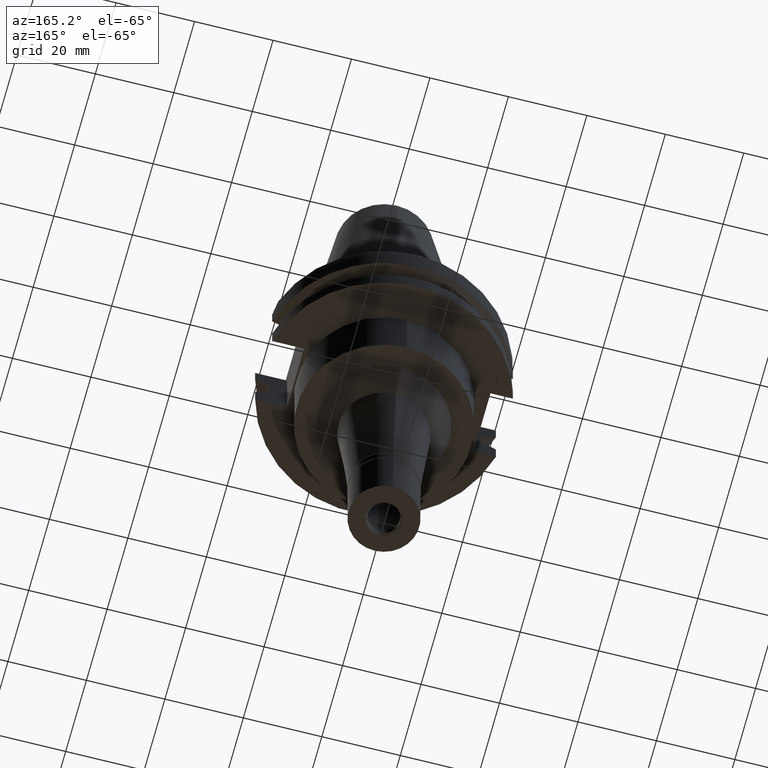
[diagram: clean part render]
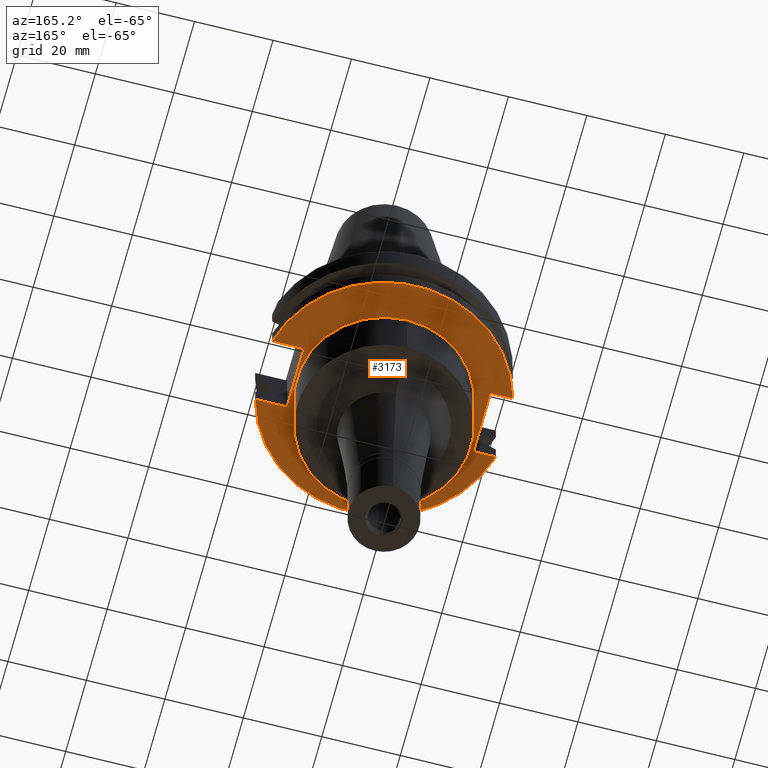
[diagram: same view with one face highlighted and labeled with its STEP entity id]
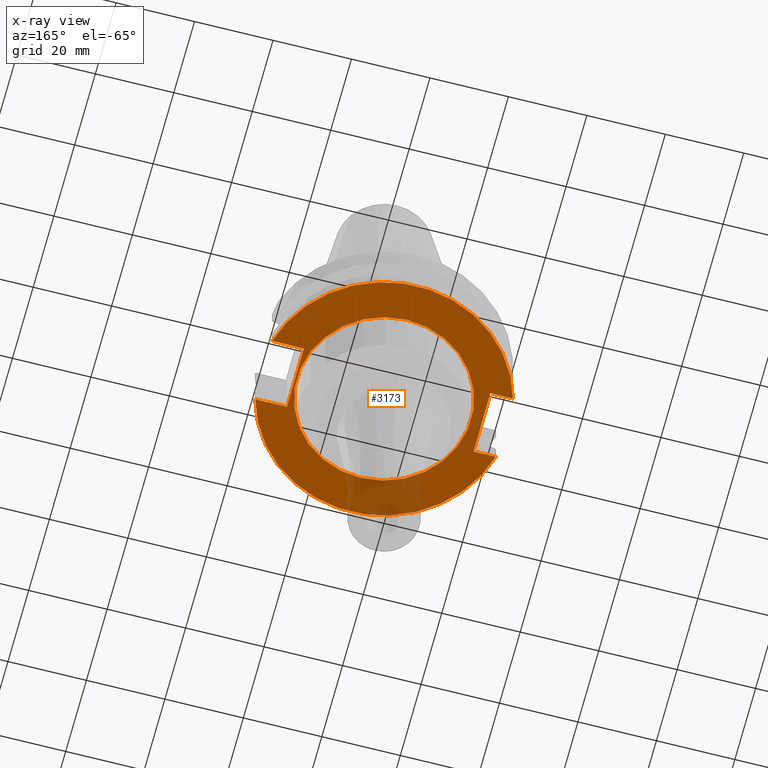
[diagram: x-ray of the same camera — body ghosted, the highlighted face saturated]
A machine part, auxiliary view. The second image highlights one B-rep face of the part: STEP entity #3173.
The next image is the same camera in x-ray: the body ghosted, the highlighted face saturated — about 13% of this face is hidden behind the body in this view.
In plain terms, the highlighted planar face has unit normal (0, 0, -1).
Its self-contained STEP definition (entity closure, byte-faithful):
#28 = LINE ( 'NONE', #1022, #1645 ) ;
#90 = CARTESIAN_POINT ( 'NONE',  ( -24.98000000000000043, 8.189999999999999503, -19.05000000000000071 ) ) ;
#120 = EDGE_CURVE ( 'NONE', #581, #715, #2353, .T. ) ;
#129 = CARTESIAN_POINT ( 'NONE',  ( 22.57000000000000028, 8.189999999999999503, -19.05000000000000071 ) ) ;
#132 = CARTESIAN_POINT ( 'NONE',  ( 22.57000000000000028, 8.189999999999999503, -19.05000000000000071 ) ) ;
#147 = LINE ( 'NONE', #2355, #2578 ) ;
#171 = VERTEX_POINT ( 'NONE', #456 ) ;
#243 = DIRECTION ( 'NONE',  ( 0.0000000000000000000, 0.0000000000000000000, -1.000000000000000000 ) ) ;
#248 = DIRECTION ( 'NONE',  ( 0.0000000000000000000, 1.000000000000000000, 0.0000000000000000000 ) ) ;
#353 = DIRECTION ( 'NONE',  ( 0.0000000000000000000, -1.000000000000000000, 0.0000000000000000000 ) ) ;
#367 = DIRECTION ( 'NONE',  ( 0.0000000000000000000, 0.0000000000000000000, 1.000000000000000000 ) ) ;
#379 = DIRECTION ( 'NONE',  ( 1.000000000000000000, 0.0000000000000000000, 0.0000000000000000000 ) ) ;
#423 = FACE_BOUND ( 'NONE', #1531, .T. ) ;
#456 = CARTESIAN_POINT ( 'NONE',  ( -30.67550162588999640, -8.189999999999999503, -19.05000000000000071 ) ) ;
#488 = DIRECTION ( 'NONE',  ( 1.000000000000000000, 0.0000000000000000000, 0.0000000000000000000 ) ) ;
#490 = ORIENTED_EDGE ( 'NONE', *, *, #2225, .T. ) ;
#531 = DIRECTION ( 'NONE',  ( -1.000000000000000000, 0.0000000000000000000, 0.0000000000000000000 ) ) ;
#534 = ORIENTED_EDGE ( 'NONE', *, *, #607, .F. ) ;
#581 = VERTEX_POINT ( 'NONE', #815 ) ;
#607 = EDGE_CURVE ( 'NONE', #581, #1787, #2093, .T. ) ;
#673 = CIRCLE ( 'NONE', #3190, 31.75000000000000000 ) ;
#699 = VECTOR ( 'NONE', #488, 1000.000000000000000 ) ;
#710 = EDGE_CURVE ( 'NONE', #3017, #760, #28, .T. ) ;
#715 = VERTEX_POINT ( 'NONE', #2985 ) ;
#760 = VERTEX_POINT ( 'NONE', #2166 ) ;
#801 = ORIENTED_EDGE ( 'NONE', *, *, #1981, .F. ) ;
#815 = CARTESIAN_POINT ( 'NONE',  ( 22.57000000000000028, 8.189999999999999503, -19.05000000000000071 ) ) ;
#846 = AXIS2_PLACEMENT_3D ( 'NONE', #2705, #1215, #248 ) ;
#872 = AXIS2_PLACEMENT_3D ( 'NONE', #1641, #1367, #1098 ) ;
#896 = CARTESIAN_POINT ( 'NONE',  ( 0.0000000000000000000, 22.22500000000000142, -19.05000000000000071 ) ) ;
#924 = CARTESIAN_POINT ( 'NONE',  ( 30.67550162588999640, -8.189999999999999503, -19.05000000000000071 ) ) ;
#951 = CIRCLE ( 'NONE', #846, 22.22500000000000142 ) ;
#976 = EDGE_CURVE ( 'NONE', #3017, #1510, #147, .T. ) ;
#1022 = CARTESIAN_POINT ( 'NONE',  ( -24.98000000000000043, 8.189999999999999503, -19.05000000000000071 ) ) ;
#1047 = VECTOR ( 'NONE', #531, 1000.000000000000000 ) ;
#1062 = EDGE_CURVE ( 'NONE', #1787, #1510, #673, .T. ) ;
#1098 = DIRECTION ( 'NONE',  ( 0.0000000000000000000, -1.000000000000000000, 0.0000000000000000000 ) ) ;
#1215 = DIRECTION ( 'NONE',  ( 0.0000000000000000000, 0.0000000000000000000, -1.000000000000000000 ) ) ;
#1266 = ORIENTED_EDGE ( 'NONE', *, *, #976, .T. ) ;
#1267 = ORIENTED_EDGE ( 'NONE', *, *, #120, .T. ) ;
#1364 = DIRECTION ( 'NONE',  ( 0.0000000000000000000, 0.0000000000000000000, 1.000000000000000000 ) ) ;
#1367 = DIRECTION ( 'NONE',  ( 0.0000000000000000000, 0.0000000000000000000, -1.000000000000000000 ) ) ;
#1373 = ORIENTED_EDGE ( 'NONE', *, *, #1519, .F. ) ;
#1384 = VECTOR ( 'NONE', #379, 1000.000000000000000 ) ;
#1405 = CARTESIAN_POINT ( 'NONE',  ( 0.0000000000000000000, 0.0000000000000000000, -19.05000000000000071 ) ) ;
#1510 = VERTEX_POINT ( 'NONE', #2747 ) ;
#1519 = EDGE_CURVE ( 'NONE', #2934, #1530, #2892, .T. ) ;
#1530 = VERTEX_POINT ( 'NONE', #896 ) ;
#1531 = EDGE_LOOP ( 'NONE', ( #2317, #1373 ) ) ;
#1547 = CARTESIAN_POINT ( 'NONE',  ( 0.0000000000000000000, -22.22500000000000142, -19.05000000000000071 ) ) ;
#1587 = DIRECTION ( 'NONE',  ( 0.0000000000000000000, 1.000000000000000000, 0.0000000000000000000 ) ) ;
#1609 = CIRCLE ( 'NONE', #1714, 31.75000000000000000 ) ;
#1619 = ORIENTED_EDGE ( 'NONE', *, *, #2063, .F. ) ;
#1641 = CARTESIAN_POINT ( 'NONE',  ( 0.0000000000000000000, 2.153878174169999899E-14, -19.05000000000000071 ) ) ;
#1645 = VECTOR ( 'NONE', #1928, 1000.000000000000000 ) ;
#1714 = AXIS2_PLACEMENT_3D ( 'NONE', #2346, #1364, #2817 ) ;
#1731 = DIRECTION ( 'NONE',  ( 0.0000000000000000000, -1.000000000000000000, 0.0000000000000000000 ) ) ;
#1757 = CARTESIAN_POINT ( 'NONE',  ( -24.98000000000000043, -8.189999999999999503, -19.05000000000000071 ) ) ;
#1787 = VERTEX_POINT ( 'NONE', #3176 ) ;
#1928 = DIRECTION ( 'NONE',  ( 0.0000000000000000000, -1.000000000000000000, 0.0000000000000000000 ) ) ;
#1981 = EDGE_CURVE ( 'NONE', #760, #171, #2976, .T. ) ;
#2063 = EDGE_CURVE ( 'NONE', #171, #2213, #1609, .T. ) ;
#2093 = LINE ( 'NONE', #129, #1384 ) ;
#2108 = FACE_OUTER_BOUND ( 'NONE', #2332, .T. ) ;
#2166 = CARTESIAN_POINT ( 'NONE',  ( -24.98000000000000043, -8.189999999999999503, -19.05000000000000071 ) ) ;
#2213 = VERTEX_POINT ( 'NONE', #924 ) ;
#2225 = EDGE_CURVE ( 'NONE', #715, #2213, #2881, .T. ) ;
#2234 = VECTOR ( 'NONE', #353, 1000.000000000000000 ) ;
#2317 = ORIENTED_EDGE ( 'NONE', *, *, #2759, .F. ) ;
#2332 = EDGE_LOOP ( 'NONE', ( #490, #1619, #801, #2912, #1266, #2916, #534, #1267 ) ) ;
#2346 = CARTESIAN_POINT ( 'NONE',  ( 0.0000000000000000000, 2.153878174169999899E-14, -19.05000000000000071 ) ) ;
#2353 = LINE ( 'NONE', #132, #2234 ) ;
#2355 = CARTESIAN_POINT ( 'NONE',  ( -24.98000000000000043, 8.189999999999999503, -19.05000000000000071 ) ) ;
#2369 = CARTESIAN_POINT ( 'NONE',  ( 0.0000000000000000000, 2.153878174169999899E-14, -19.05000000000000071 ) ) ;
#2441 = CARTESIAN_POINT ( 'NONE',  ( 22.57000000000000028, -8.189999999999999503, -19.05000000000000071 ) ) ;
#2578 = VECTOR ( 'NONE', #2588, 1000.000000000000000 ) ;
#2588 = DIRECTION ( 'NONE',  ( -1.000000000000000000, 0.0000000000000000000, 0.0000000000000000000 ) ) ;
#2705 = CARTESIAN_POINT ( 'NONE',  ( 0.0000000000000000000, 2.153878174169999899E-14, -19.05000000000000071 ) ) ;
#2747 = CARTESIAN_POINT ( 'NONE',  ( -30.67550162588999640, 8.189999999999999503, -19.05000000000000071 ) ) ;
#2759 = EDGE_CURVE ( 'NONE', #1530, #2934, #951, .T. ) ;
#2817 = DIRECTION ( 'NONE',  ( 0.0000000000000000000, -1.000000000000000000, 0.0000000000000000000 ) ) ;
#2881 = LINE ( 'NONE', #2441, #699 ) ;
#2892 = CIRCLE ( 'NONE', #872, 22.22500000000000142 ) ;
#2912 = ORIENTED_EDGE ( 'NONE', *, *, #710, .F. ) ;
#2916 = ORIENTED_EDGE ( 'NONE', *, *, #1062, .F. ) ;
#2934 = VERTEX_POINT ( 'NONE', #1547 ) ;
#2976 = LINE ( 'NONE', #1757, #1047 ) ;
#2985 = CARTESIAN_POINT ( 'NONE',  ( 22.57000000000000028, -8.189999999999999503, -19.05000000000000071 ) ) ;
#3017 = VERTEX_POINT ( 'NONE', #90 ) ;
#3100 = PLANE ( 'NONE',  #3151 ) ;
#3151 = AXIS2_PLACEMENT_3D ( 'NONE', #1405, #243, #1731 ) ;
#3173 = ADVANCED_FACE ( 'NONE', ( #2108, #423 ), #3100, .T. ) ;
#3176 = CARTESIAN_POINT ( 'NONE',  ( 30.67550162588999640, 8.189999999999999503, -19.05000000000000071 ) ) ;
#3190 = AXIS2_PLACEMENT_3D ( 'NONE', #2369, #367, #1587 ) ;